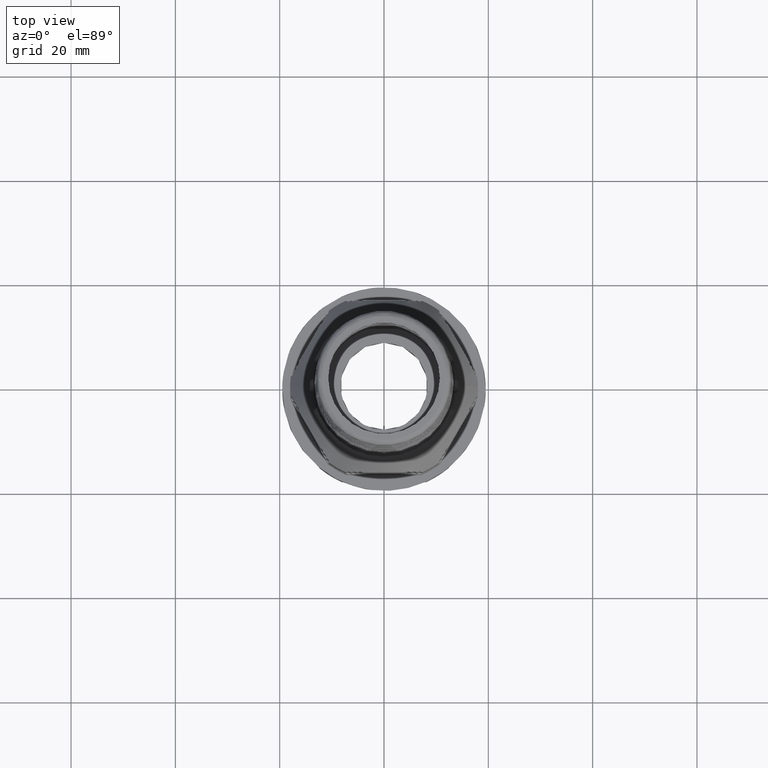
[diagram: clean part render]
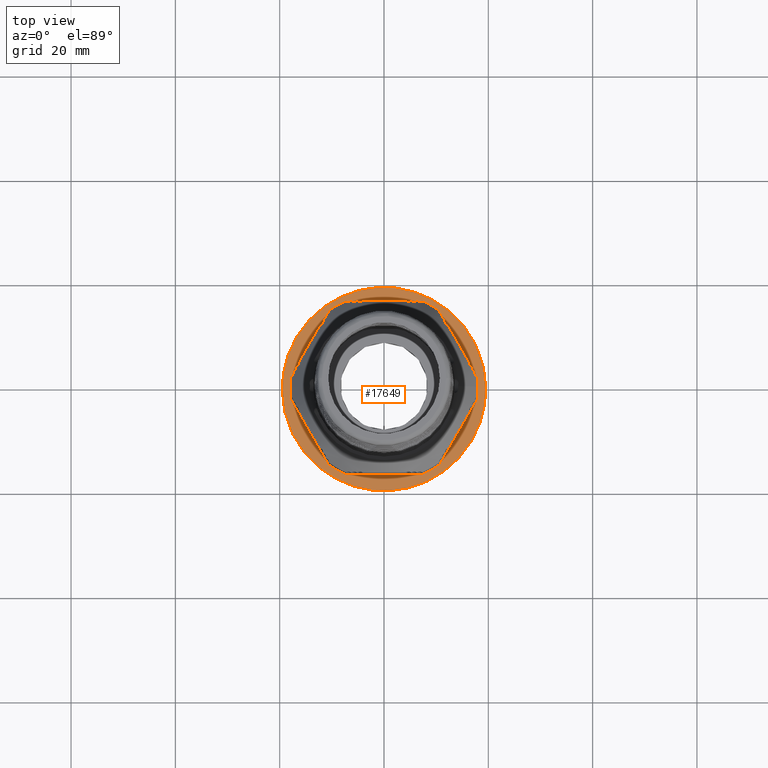
[diagram: same view with one face highlighted and labeled with its STEP entity id]
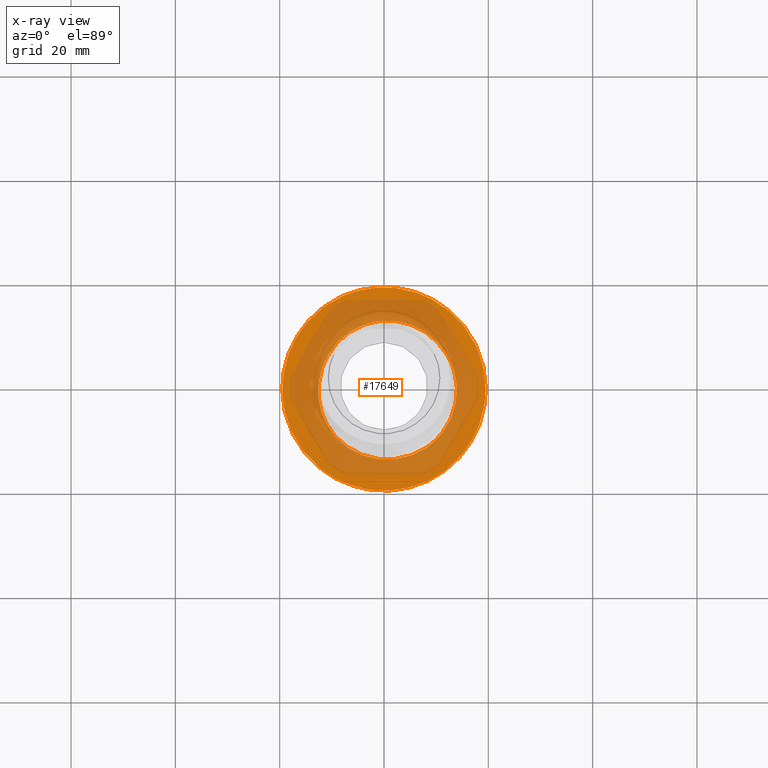
[diagram: x-ray of the same camera — body ghosted, the highlighted face saturated]
A machine part, top view. The second image highlights one B-rep face of the part: STEP entity #17649.
The next image is the same camera in x-ray: the body ghosted, the highlighted face saturated — about 60% of this face is hidden behind the body in this view.
In plain terms, the highlighted planar face has unit normal (0, 0, 1).
Its self-contained STEP definition (entity closure, byte-faithful):
#1501 = EDGE_LOOP ( 'NONE', ( #10972, #10967 ) ) ;
#1535 = EDGE_LOOP ( 'NONE', ( #11000, #11056, #10982, #11003 ) ) ;
#2568 = EDGE_CURVE ( 'NONE', #18529, #18474, #20102, .T. ) ;
#2581 = EDGE_CURVE ( 'NONE', #18489, #18523, #20106, .T. ) ;
#2585 = EDGE_CURVE ( 'NONE', #18590, #18618, #20108, .T. ) ;
#2616 = EDGE_CURVE ( 'NONE', #18523, #18590, #11880, .T. ) ;
#2658 = EDGE_CURVE ( 'NONE', #18618, #18489, #11894, .T. ) ;
#2683 = EDGE_CURVE ( 'NONE', #18474, #18529, #11847, .T. ) ;
#7761 = CARTESIAN_POINT ( 'NONE',  ( -10.63528446055113400, 6.568159897806968800, 8.832912421834274500 ) ) ;
#7766 = CARTESIAN_POINT ( 'NONE',  ( -10.32152492956580200, 7.135968187481874600, 8.832912421834269200 ) ) ;
#7774 = CARTESIAN_POINT ( 'NONE',  ( -7.788545115851558600, 10.06542794724939100, 8.832912421834270900 ) ) ;
#7775 = CARTESIAN_POINT ( 'NONE',  ( 2.127486798893839700, 13.03057928978716400, 8.832912421834272700 ) ) ;
#7776 = CARTESIAN_POINT ( 'NONE',  ( 2.286121411070273400, 13.01104878672296300, 8.832912421834272700 ) ) ;
#7778 = CARTESIAN_POINT ( 'NONE',  ( -1.092521394825930500, 13.01748165855391900, 8.832912421834270900 ) ) ;
#7779 = CARTESIAN_POINT ( 'NONE',  ( 8.506789120695653800, 10.51414064224610300, 8.832912421834272700 ) ) ;
#7780 = CARTESIAN_POINT ( 'NONE',  ( 8.887283262886200000, 10.21420917990582700, 8.832912421834270900 ) ) ;
#7781 = CARTESIAN_POINT ( 'NONE',  ( 0.8449559554909865700, 13.12125333294385100, 8.832912421834270900 ) ) ;
#7782 = CARTESIAN_POINT ( 'NONE',  ( 11.15275278135372300, 7.922122602979476000, 8.832912421834272700 ) ) ;
#7783 = CARTESIAN_POINT ( 'NONE',  ( -3.606363129913691800, 12.45802658282901200, 8.832912421834274500 ) ) ;
#7787 = CARTESIAN_POINT ( 'NONE',  ( 10.53102502614029800, 8.665440864402782500, 8.832912421834272700 ) ) ;
#7788 = CARTESIAN_POINT ( 'NONE',  ( 0.3618041826685159900, 13.11926343725905600, 8.832912421834272700 ) ) ;
#7789 = CARTESIAN_POINT ( 'NONE',  ( -8.493852660665682600, 9.396114858588429500, 8.832912421834274500 ) ) ;
#7790 = CARTESIAN_POINT ( 'NONE',  ( -2.047892586978101700, 12.85438541354413800, 8.832912421834274500 ) ) ;
#7791 = CARTESIAN_POINT ( 'NONE',  ( 1.327039749381867300, 13.10579224105601200, 8.832912421834274500 ) ) ;
#7792 = CARTESIAN_POINT ( 'NONE',  ( 3.733291012456450000, 12.80611546802535400, 8.832912421834270900 ) ) ;
#7793 = CARTESIAN_POINT ( 'NONE',  ( 7.585448956188500300, 11.16213656978995600, 8.832912421834269200 ) ) ;
#7794 = CARTESIAN_POINT ( 'NONE',  ( 9.624808213997484400, 9.584638984554517900, 8.832912421834269200 ) ) ;
#7795 = CARTESIAN_POINT ( 'NONE',  ( -5.670349479566499300, 11.53024714431163000, 8.832912421834270900 ) ) ;
#7796 = CARTESIAN_POINT ( 'NONE',  ( -8.667590982480613000, 9.222976184102126500, 8.832912421834272700 ) ) ;
#7797 = CARTESIAN_POINT ( 'NONE',  ( -0.6124652094753833000, 13.07334182347523700, 8.832912421834272700 ) ) ;
#7799 = CARTESIAN_POINT ( 'NONE',  ( 1.807521574875368100, 13.06415466780922900, 8.832912421834270900 ) ) ;
#7800 = CARTESIAN_POINT ( 'NONE',  ( -1.730515671665994400, 12.91568021337145400, 8.832912421834272700 ) ) ;
#7801 = CARTESIAN_POINT ( 'NONE',  ( 11.53704567049074800, 7.403831937229215400, 8.832912421834269200 ) ) ;
#7802 = CARTESIAN_POINT ( 'NONE',  ( 11.71927352932911000, 7.139212513552134700, 8.832912421834272700 ) ) ;
#7803 = CARTESIAN_POINT ( 'NONE',  ( 10.95154865248363600, 8.174444388414189100, 8.832912421834272700 ) ) ;
#7804 = CARTESIAN_POINT ( 'NONE',  ( -4.503498972059803800, 12.10017154158212300, 8.832912421834270900 ) ) ;
#7805 = CARTESIAN_POINT ( 'NONE',  ( 0.1968502551636878700, 13.11559056148671400, 8.832912421834269200 ) ) ;
#7806 = CARTESIAN_POINT ( 'NONE',  ( -6.226088779591186100, 11.20472692690667100, 8.832912421834270900 ) ) ;
#7807 = CARTESIAN_POINT ( 'NONE',  ( 9.137753595832672100, 10.00931733346467700, 8.832912421834272700 ) ) ;
#7808 = CARTESIAN_POINT ( 'NONE',  ( 9.262748822013719500, 9.903209277275857800, 8.832912421834270900 ) ) ;
#7809 = CARTESIAN_POINT ( 'NONE',  ( 10.31126615853526100, 8.904666989775073200, 8.832912421834270900 ) ) ;
#7810 = CARTESIAN_POINT ( 'NONE',  ( -7.290418477426449300, 10.46855409489786500, 8.832912421834274500 ) ) ;
#7811 = CARTESIAN_POINT ( 'NONE',  ( -2.521208214756748100, 12.75374468171491500, 8.832912421834270900 ) ) ;
#7812 = CARTESIAN_POINT ( 'NONE',  ( 12.59373341629875400, 5.768503091580079500, 8.832912421834270900 ) ) ;
#7813 = CARTESIAN_POINT ( 'NONE',  ( 13.49608267571282600, 3.347259511796654200, 8.832912421834270900 ) ) ;
#7817 = CARTESIAN_POINT ( 'NONE',  ( 9.858648974100711700, 9.363692507539601800, 8.832912421834272700 ) ) ;
#7818 = CARTESIAN_POINT ( 'NONE',  ( 4.967279109086494100, 12.44328383133036200, 8.832912421834270900 ) ) ;
#7820 = CARTESIAN_POINT ( 'NONE',  ( 13.12770580596202100, 4.595899385793029700, 8.832912421834270900 ) ) ;
#7822 = CARTESIAN_POINT ( 'NONE',  ( -8.376737951922496700, 9.510625941943846600, 8.832912421834269200 ) ) ;
#7824 = CARTESIAN_POINT ( 'NONE',  ( 6.738265101932306300, 11.62868596268447500, 8.832912421834270900 ) ) ;
#7825 = CARTESIAN_POINT ( 'NONE',  ( -9.059444210949882500, 8.809381597461943200, 8.832912421834267400 ) ) ;
#7826 = CARTESIAN_POINT ( 'NONE',  ( -8.316332550132957000, 9.568557104420694500, 8.832912421834272700 ) ) ;
#7827 = CARTESIAN_POINT ( 'NONE',  ( -1.569322819333594900, 12.94367389238881700, 8.832912421834270900 ) ) ;
#7829 = CARTESIAN_POINT ( 'NONE',  ( -0.1275268828605173900, 13.10228058653087800, 8.832912421834272700 ) ) ;
#7832 = CARTESIAN_POINT ( 'NONE',  ( -9.789005911492846900, 7.943775039492941800, 8.832912421834269200 ) ) ;
#8198 = CARTESIAN_POINT ( 'NONE',  ( 8.220085743327294000, -11.21510518012796700, 8.832912421834402400 ) ) ;
#8227 = CARTESIAN_POINT ( 'NONE',  ( 7.677575320285786400, -11.57795048156349600, 8.832912421834269200 ) ) ;
#8232 = CARTESIAN_POINT ( 'NONE',  ( 2.214854888103020800, -13.44221849022619300, 8.832912421834274500 ) ) ;
#8233 = CARTESIAN_POINT ( 'NONE',  ( -6.987305788843944900, -11.20287363727865100, 8.832912421834270900 ) ) ;
#8236 = CARTESIAN_POINT ( 'NONE',  ( 3.170307517332861200, -13.31661275345429700, 8.832912421834274500 ) ) ;
#8237 = CARTESIAN_POINT ( 'NONE',  ( -8.253345261836456000, -10.19612918445559100, 8.832912421834270900 ) ) ;
#8238 = CARTESIAN_POINT ( 'NONE',  ( -6.161390027909967600, -11.71468299547337500, 8.832912421834272700 ) ) ;
#8239 = CARTESIAN_POINT ( 'NONE',  ( -10.72836834649347700, -7.243672712744414700, 8.832912421834269200 ) ) ;
#8240 = CARTESIAN_POINT ( 'NONE',  ( -11.34524375873460900, -6.105786110893305400, 8.832912421834270900 ) ) ;
#8241 = CARTESIAN_POINT ( 'NONE',  ( -11.72880534121372300, -5.220014736956866100, 8.832912421834270900 ) ) ;
#8242 = CARTESIAN_POINT ( 'NONE',  ( -11.60853703420215400, -5.518067563731420000, 8.832912421834269200 ) ) ;
#8243 = CARTESIAN_POINT ( 'NONE',  ( -12.49675452122086500, 1.128324711970163400, 8.832912421834270900 ) ) ;
#8244 = CARTESIAN_POINT ( 'NONE',  ( 0.2752443603776631400, -13.54799320162172700, 8.832912421834272700 ) ) ;
#8245 = CARTESIAN_POINT ( 'NONE',  ( 5.035545198728547300, -12.79671544937548000, 8.832912421834270900 ) ) ;
#8246 = CARTESIAN_POINT ( 'NONE',  ( 1.253775328540522200, -13.52299255721314400, 8.832912421834272700 ) ) ;
#8247 = CARTESIAN_POINT ( 'NONE',  ( -7.511353332126190300, -10.82234165333224100, 8.832912421834272700 ) ) ;
#8248 = CARTESIAN_POINT ( 'NONE',  ( -8.492067486093908700, -9.979338207093539000, 8.832912421834272700 ) ) ;
#8249 = CARTESIAN_POINT ( 'NONE',  ( -9.814055114116529300, -8.572127212902282500, 8.832912421834272700 ) ) ;
#8250 = CARTESIAN_POINT ( 'NONE',  ( -12.21691943556752600, -3.685810379296513300, 8.832912421834269200 ) ) ;
#8254 = CARTESIAN_POINT ( 'NONE',  ( -3.524463025326630500, -12.90923471156005000, 8.832912421834272700 ) ) ;
#8255 = CARTESIAN_POINT ( 'NONE',  ( -12.41367346086022200, -2.734923397327322400, 8.832912421834272700 ) ) ;
#8256 = CARTESIAN_POINT ( 'NONE',  ( -12.54375720954549000, -1.773313495230516700, 8.832912421834270900 ) ) ;
#8257 = CARTESIAN_POINT ( 'NONE',  ( 1.574080837194460800, -13.50356516219620000, 8.832912421834269200 ) ) ;
#8258 = CARTESIAN_POINT ( 'NONE',  ( 6.834003668531367200, -12.06001634049854400, 8.832912421834274500 ) ) ;
#8259 = CARTESIAN_POINT ( 'NONE',  ( -5.879493008220936900, -11.87563601049118100, 8.832912421834270900 ) ) ;
#8260 = CARTESIAN_POINT ( 'NONE',  ( -8.952295096650226800, -9.529649276896435600, 8.832912421834270900 ) ) ;
#8261 = CARTESIAN_POINT ( 'NONE',  ( -0.6921131705442515900, -13.50385537775190400, 8.832912421834270900 ) ) ;
#8262 = CARTESIAN_POINT ( 'NONE',  ( -11.20110317053046200, -6.397647698057504300, 8.832912421834269200 ) ) ;
#8264 = CARTESIAN_POINT ( 'NONE',  ( -12.32886363081301400, -3.213146698458058100, 8.832912421834272700 ) ) ;
#8265 = CARTESIAN_POINT ( 'NONE',  ( -12.48659448721401900, -2.252795522439926800, 8.832912421834270900 ) ) ;
#8266 = CARTESIAN_POINT ( 'NONE',  ( -12.58276521883704800, -1.292898941875718900, 8.832912421834270900 ) ) ;
#8267 = CARTESIAN_POINT ( 'NONE',  ( -9.173018618344704200, -9.297636218783601700, 8.832912421834274500 ) ) ;
#8268 = CARTESIAN_POINT ( 'NONE',  ( -12.56822447032707600, 0.4838707407929995200, 8.832912421834269200 ) ) ;
#8269 = CARTESIAN_POINT ( 'NONE',  ( -12.37465206567911500, 1.765782051495467400, 8.832912421834269200 ) ) ;
#8270 = CARTESIAN_POINT ( 'NONE',  ( -12.59634021404322900, -0.4895658622057779700, 8.832912421834269200 ) ) ;
#8271 = CARTESIAN_POINT ( 'NONE',  ( -5.308266191602853300, -12.17467816306330000, 8.832912421834272700 ) ) ;
#8274 = CARTESIAN_POINT ( 'NONE',  ( -12.59427127366542900, -0.3304425127432857900, 8.832912421834272700 ) ) ;
#8275 = CARTESIAN_POINT ( 'NONE',  ( 5.945722990988478800, -12.44877905960592700, 8.832912421834272700 ) ) ;
#8276 = CARTESIAN_POINT ( 'NONE',  ( -2.585393402619570000, -13.15919124347987400, 8.832912421834272700 ) ) ;
#8277 = CARTESIAN_POINT ( 'NONE',  ( -2.740306788132051500, -13.12046749305558200, 8.832912421834272700 ) ) ;
#8278 = CARTESIAN_POINT ( 'NONE',  ( -10.20194808142910100, -8.060101112494237400, 8.832912421834272700 ) ) ;
#8281 = CARTESIAN_POINT ( 'NONE',  ( -4.437401423391335700, -12.59072741007755900, 8.832912421834270900 ) ) ;
#8282 = CARTESIAN_POINT ( 'NONE',  ( -12.04354107284173700, -4.311086735710205200, 8.832912421834272700 ) ) ;
#8283 = CARTESIAN_POINT ( 'NONE',  ( -12.46418348862540900, -2.414872392064103300, 8.832912421834269200 ) ) ;
#8284 = CARTESIAN_POINT ( 'NONE',  ( -12.59454115856873800, -0.8110855993028321900, 8.832912421834272700 ) ) ;
#8287 = CARTESIAN_POINT ( 'NONE',  ( -10.89310467997611900, -6.965610589840393300, 8.832912421834270900 ) ) ;
#8288 = CARTESIAN_POINT ( 'NONE',  ( -11.94658529379247700, -4.615521977020532200, 8.832912421834269200 ) ) ;
#8289 = CARTESIAN_POINT ( 'NONE',  ( -1.801143441448160200, -13.33136893041659300, 8.832912421834272700 ) ) ;
#8290 = CARTESIAN_POINT ( 'NONE',  ( 5.343600533562450600, -12.68722017460470000, 8.832912421834276300 ) ) ;
#8291 = CARTESIAN_POINT ( 'NONE',  ( 4.108634805163704900, -13.09024983023176600, 8.832912421834276300 ) ) ;
#8292 = CARTESIAN_POINT ( 'NONE',  ( -2.272252090013053800, -13.23151924166847800, 8.832912421834270900 ) ) ;
#8341 = CARTESIAN_POINT ( 'NONE',  ( -18.18850528484338400, -7.030639790636116400, 8.832912421834269200 ) ) ;
#8342 = CARTESIAN_POINT ( 'NONE',  ( -18.32815950568127100, -6.661362341645049600, 8.832912421834270900 ) ) ;
#8343 = CARTESIAN_POINT ( 'NONE',  ( -16.92673472056512200, -9.691796214194422300, 8.832912421834274500 ) ) ;
#8345 = CARTESIAN_POINT ( 'NONE',  ( -16.63053719962815400, -10.18452010551310300, 8.832912421834269200 ) ) ;
#8346 = CARTESIAN_POINT ( 'NONE',  ( -16.41111887864578000, -10.53242593149195700, 8.832912421834272700 ) ) ;
#8348 = CARTESIAN_POINT ( 'NONE',  ( -19.05942834541067700, -4.169961569677856700, 8.832912421834270900 ) ) ;
#8349 = CARTESIAN_POINT ( 'NONE',  ( -16.36743899021647100, -10.60018521425099400, 8.832912421834272700 ) ) ;
#8350 = CARTESIAN_POINT ( 'NONE',  ( -15.58498812551968300, -11.79706981915879100, 8.832912421834270900 ) ) ;
#8352 = CARTESIAN_POINT ( 'NONE',  ( -19.34057585810890200, -2.520011729769063600, 8.832912421834272700 ) ) ;
#8353 = CARTESIAN_POINT ( 'NONE',  ( -19.26344614252063900, -3.034699548263470900, 8.832912421834272700 ) ) ;
#8354 = CARTESIAN_POINT ( 'NONE',  ( -16.49944023032134800, -10.39354876420705400, 8.832912421834272700 ) ) ;
#8358 = CARTESIAN_POINT ( 'NONE',  ( -19.22043313117306000, -3.291628015740278600, 8.832912421834270900 ) ) ;
#8359 = CARTESIAN_POINT ( 'NONE',  ( -19.18164383029274200, -3.509424394059259500, 8.832912421834272700 ) ) ;
#8360 = CARTESIAN_POINT ( 'NONE',  ( -19.50000000000000400, 2.388061258337339700E-015, 8.832912421834270900 ) ) ;
#8361 = CARTESIAN_POINT ( 'NONE',  ( -18.84271073970055700, -5.089919019711092400, 8.832912421834269200 ) ) ;
#8370 = CARTESIAN_POINT ( 'NONE',  ( -19.20104580769123000, -3.401651192850970100, 8.832912421834272700 ) ) ;
#8373 = CARTESIAN_POINT ( 'NONE',  ( -19.18790910853412900, -3.474980194649982300, 8.832912421834272700 ) ) ;
#8374 = CARTESIAN_POINT ( 'NONE',  ( -18.51256186216641500, -6.141212873916987100, 8.832912421834270900 ) ) ;
#8375 = CARTESIAN_POINT ( 'NONE',  ( -18.23112634800917700, -6.920062710665354700, 8.832912421834269200 ) ) ;
#8378 = CARTESIAN_POINT ( 'NONE',  ( -18.15986114847429900, -7.104292398005022800, 8.832912421834267400 ) ) ;
#8379 = CARTESIAN_POINT ( 'NONE',  ( -18.14602691760370600, -7.139563005802347800, 8.832912421834269200 ) ) ;
#8381 = CARTESIAN_POINT ( 'NONE',  ( -17.88839112053648300, -7.790388126923280900, 8.832912421834272700 ) ) ;
#8382 = CARTESIAN_POINT ( 'NONE',  ( -17.48034813265658700, -8.686387014092574100, 8.832912421834274500 ) ) ;
#8384 = CARTESIAN_POINT ( 'NONE',  ( -19.49996755733860000, -0.5964443533499934600, 8.832912421834270900 ) ) ;
#8394 = CARTESIAN_POINT ( 'NONE',  ( -19.45925006085794400, -1.487312558617094100, 8.832912421834270900 ) ) ;
#8398 = CARTESIAN_POINT ( 'NONE',  ( 3.291520154797873000, -19.22045308807922800, 8.832912421834270900 ) ) ;
#8399 = CARTESIAN_POINT ( 'NONE',  ( -1.192362756199897700, -19.49996757164703000, 8.832912421834274500 ) ) ;
#8400 = CARTESIAN_POINT ( 'NONE',  ( -7.214586675483380100, -18.11632577817822200, 8.832912421834269200 ) ) ;
#8401 = CARTESIAN_POINT ( 'NONE',  ( 4.169961569685449700, -19.05942834540512400, 8.832912421834270900 ) ) ;
#8402 = CARTESIAN_POINT ( 'NONE',  ( -13.31277013237256300, -14.26442061300694600, 8.832912421834272700 ) ) ;
#8403 = CARTESIAN_POINT ( 'NONE',  ( -11.15887250038119300, -15.99315546079712500, 8.832912421834274500 ) ) ;
#8404 = CARTESIAN_POINT ( 'NONE',  ( 6.661362341650867200, -18.32815950567700700, 8.832912421834270900 ) ) ;
#8405 = CARTESIAN_POINT ( 'NONE',  ( 9.691796214213685100, -16.92673472056096500, 8.832912421834270900 ) ) ;
#8406 = CARTESIAN_POINT ( 'NONE',  ( 15.65315157624401900, -11.63756191358780800, 8.832912421834270900 ) ) ;
#8407 = CARTESIAN_POINT ( 'NONE',  ( -10.81112723256199000, -16.22888334612209600, 8.832912421834272700 ) ) ;
#8408 = CARTESIAN_POINT ( 'NONE',  ( -10.95063646381082200, -16.13509562956021200, 8.832912421834269200 ) ) ;
#8409 = CARTESIAN_POINT ( 'NONE',  ( -3.819945231567078500, -19.12248016738217200, 8.832912421834270900 ) ) ;
#8410 = CARTESIAN_POINT ( 'NONE',  ( 3.474947836367261500, -19.18791509560597700, 8.832912421834272700 ) ) ;
#8411 = CARTESIAN_POINT ( 'NONE',  ( 6.141212873926961400, -18.51256186215911700, 8.832912421834269200 ) ) ;
#8412 = CARTESIAN_POINT ( 'NONE',  ( 2.519666574753368000, -19.34063972020862800, 8.832912421834270900 ) ) ;
#8413 = CARTESIAN_POINT ( 'NONE',  ( 11.79706981920305400, -15.58498812547758800, 8.832912421834272700 ) ) ;
#8414 = CARTESIAN_POINT ( 'NONE',  ( 15.99315546079868600, -11.15887250037880200, 8.832912421834270900 ) ) ;
#8415 = CARTESIAN_POINT ( 'NONE',  ( -9.269057523430376500, -17.17848948409491800, 8.832912421834267400 ) ) ;
#8416 = CARTESIAN_POINT ( 'NONE',  ( 7.139563005801436500, -18.14602691760389400, 8.832912421834269200 ) ) ;
#8417 = CARTESIAN_POINT ( 'NONE',  ( 14.26442061300899200, -13.31277013236943000, 8.832912421834269200 ) ) ;
#8418 = CARTESIAN_POINT ( 'NONE',  ( 16.13509562956116000, -10.95063646380938100, 8.832912421834270900 ) ) ;
#8419 = CARTESIAN_POINT ( 'NONE',  ( 16.68192366310024300, -10.11919604914533700, 8.832912421834270900 ) ) ;
#8420 = CARTESIAN_POINT ( 'NONE',  ( 17.17848948409686800, -9.269057523427408200, 8.832912421834270900 ) ) ;
#8421 = CARTESIAN_POINT ( 'NONE',  ( 10.53242593149551500, -16.41111887864501600, 8.832912421834272700 ) ) ;
#8422 = CARTESIAN_POINT ( 'NONE',  ( -7.710732707603274800, -17.91211419865874900, 8.832912421834270900 ) ) ;
#8423 = CARTESIAN_POINT ( 'NONE',  ( 7.104292398005969600, -18.15986114847361000, 8.832912421834269200 ) ) ;
#8424 = CARTESIAN_POINT ( 'NONE',  ( 16.22888334612259300, -10.81112723256123300, 8.832912421834270900 ) ) ;
#8425 = CARTESIAN_POINT ( 'NONE',  ( 17.68046457687025400, -8.236896445812263300, 8.832912421834270900 ) ) ;
#8426 = CARTESIAN_POINT ( 'NONE',  ( 14.93790317736573300, -12.56616205152731200, 8.832912421834272700 ) ) ;
#8427 = CARTESIAN_POINT ( 'NONE',  ( -11.63756191359192000, -15.65315157624133700, 8.832912421834272700 ) ) ;
#8428 = CARTESIAN_POINT ( 'NONE',  ( -4.090676306494595200, -19.06728964218737200, 8.832912421834269200 ) ) ;
#8429 = CARTESIAN_POINT ( 'NONE',  ( -3.684229206127295000, -19.14886942680940200, 8.832912421834270900 ) ) ;
#8430 = CARTESIAN_POINT ( 'NONE',  ( -8.236896445814496200, -17.68046457686879000, 8.832912421834272700 ) ) ;
#8431 = CARTESIAN_POINT ( 'NONE',  ( 3.509424394058782600, -19.18164383029309100, 8.832912421834269200 ) ) ;
#8432 = CARTESIAN_POINT ( 'NONE',  ( 1.486852351929497400, -19.45933521032426600, 8.832912421834270900 ) ) ;
#8433 = CARTESIAN_POINT ( 'NONE',  ( 3.034498207837650300, -19.26348339541215200, 8.832912421834270900 ) ) ;
#8434 = CARTESIAN_POINT ( 'NONE',  ( 10.39354876421381800, -16.49944023031988400, 8.832912421834272700 ) ) ;
#8435 = CARTESIAN_POINT ( 'NONE',  ( 10.60018521424822800, -16.36743899021908900, 8.832912421834269200 ) ) ;
#8436 = CARTESIAN_POINT ( 'NONE',  ( -2.375828718504893600, -19.39145244715056600, 8.832912421834270900 ) ) ;
#8437 = CARTESIAN_POINT ( 'NONE',  ( -3.625990090658242500, -19.15992068017033400, 8.832912421834270900 ) ) ;
#8438 = CARTESIAN_POINT ( 'NONE',  ( -5.695435429402352600, -18.66861031348987900, 8.832912421834270900 ) ) ;
#8439 = CARTESIAN_POINT ( 'NONE',  ( 0.5961813780999371000, -19.50001621417649400, 8.832912421834270900 ) ) ;
#8440 = CARTESIAN_POINT ( 'NONE',  ( 3.401588017156132800, -19.20105749673627200, 8.832912421834270900 ) ) ;
#8441 = CARTESIAN_POINT ( 'NONE',  ( 10.18452010552433900, -16.63053719962573900, 8.832912421834270900 ) ) ;
#8442 = CARTESIAN_POINT ( 'NONE',  ( -7.254393522785966800, -18.10042652156721800, 8.832912421834267400 ) ) ;
#8443 = CARTESIAN_POINT ( 'NONE',  ( -14.74020643466793400, -12.83690547339915400, 8.832912421834274500 ) ) ;
#8444 = CARTESIAN_POINT ( 'NONE',  ( -4.629334552541433100, -18.94726056643655800, 8.832912421834272700 ) ) ;
#8445 = CARTESIAN_POINT ( 'NONE',  ( 5.089919019724384000, -18.84271073969083000, 8.832912421834270900 ) ) ;
#8446 = CARTESIAN_POINT ( 'NONE',  ( 12.83690547339506900, -14.74020643467418500, 8.832912421834270900 ) ) ;
#8447 = CARTESIAN_POINT ( 'NONE',  ( 16.27634856947163700, -10.73951445874340000, 8.832912421834270900 ) ) ;
#8448 = CARTESIAN_POINT ( 'NONE',  ( 17.91211419865960500, -7.710732707601969200, 8.832912421834270900 ) ) ;
#8449 = CARTESIAN_POINT ( 'NONE',  ( 18.02310452840493900, -7.445130038646144800, 8.832912421834272700 ) ) ;
#8450 = CARTESIAN_POINT ( 'NONE',  ( -10.11919604914703200, -16.68192366309914500, 8.832912421834270900 ) ) ;
#8451 = CARTESIAN_POINT ( 'NONE',  ( -7.445130038646847300, -18.02310452840449200, 8.832912421834274500 ) ) ;
#8452 = CARTESIAN_POINT ( 'NONE',  ( -6.590009412026983400, -18.36360935134412400, 8.832912421834270900 ) ) ;
#8453 = CARTESIAN_POINT ( 'NONE',  ( 7.790388126937964200, -17.88839112053332100, 8.832912421834272700 ) ) ;
#8454 = CARTESIAN_POINT ( 'NONE',  ( -3.587147323775251800, -19.16723075368856000, 8.832912421834272700 ) ) ;
#8455 = CARTESIAN_POINT ( 'NONE',  ( 7.030639790637954100, -18.18850528484203700, 8.832912421834270900 ) ) ;
#8456 = CARTESIAN_POINT ( 'NONE',  ( -12.56616205153279400, -14.93790317736215200, 8.832912421834272700 ) ) ;
#8457 = CARTESIAN_POINT ( 'NONE',  ( -10.73951445874319300, -16.27634856947177900, 8.832912421834270900 ) ) ;
#8458 = CARTESIAN_POINT ( 'NONE',  ( -7.330760151983199100, -18.06963585233496200, 8.832912421834269200 ) ) ;
#8459 = CARTESIAN_POINT ( 'NONE',  ( -3.566599065842017700, -19.17106409407589500, 8.832912421834269200 ) ) ;
#8460 = CARTESIAN_POINT ( 'NONE',  ( 8.686387014118260200, -17.48034813265105200, 8.832912421834270900 ) ) ;
#8461 = CARTESIAN_POINT ( 'NONE',  ( 6.920062710668480200, -18.23112634800689600, 8.832912421834270900 ) ) ;
#8465 = CARTESIAN_POINT ( 'NONE',  ( 18.06963585233523200, -7.330760151982789600, 8.832912421834269200 ) ) ;
#8476 = CARTESIAN_POINT ( 'NONE',  ( 19.39141999004595700, -2.376004086019986700, 8.832912421834272700 ) ) ;
#8480 = CARTESIAN_POINT ( 'NONE',  ( 18.66861031349036500, -5.695435429399272400, 8.832912421834272700 ) ) ;
#8481 = CARTESIAN_POINT ( 'NONE',  ( 18.10042652156736100, -7.254393522785756300, 8.832912421834272700 ) ) ;
#8482 = CARTESIAN_POINT ( 'NONE',  ( 19.15992068017036900, -3.625990090658021400, 8.832912421834272700 ) ) ;
#8484 = CARTESIAN_POINT ( 'NONE',  ( 19.49993509533822000, -1.193244245341063200, 8.832912421834269200 ) ) ;
#8493 = CARTESIAN_POINT ( 'NONE',  ( 19.17106460121815900, -3.566596325724591000, 8.832912421834269200 ) ) ;
#8495 = CARTESIAN_POINT ( 'NONE',  ( 19.12248016738228500, -3.819945231566349800, 8.832912421834270900 ) ) ;
#8496 = CARTESIAN_POINT ( 'NONE',  ( 19.14886942680945800, -3.684229206126915700, 8.832912421834272700 ) ) ;
#8506 = CARTESIAN_POINT ( 'NONE',  ( 19.16723075368857500, -3.587147323775139000, 8.832912421834270900 ) ) ;
#8507 = CARTESIAN_POINT ( 'NONE',  ( 18.11632577817820100, -7.214586675483488400, 8.832912421834269200 ) ) ;
#8512 = CARTESIAN_POINT ( 'NONE',  ( 18.36360935134439400, -6.590009412025217700, 8.832912421834270900 ) ) ;
#8513 = CARTESIAN_POINT ( 'NONE',  ( 18.94726056643693100, -4.629334552539118500, 8.832912421834272700 ) ) ;
#8515 = CARTESIAN_POINT ( 'NONE',  ( 19.06728964218759600, -4.090676306493235400, 8.832912421834270900 ) ) ;
#8520 = CARTESIAN_POINT ( 'NONE',  ( 19.50000000000000700, -9.552245033349358500E-016, 8.832912421834270900 ) ) ;
#8864 = CARTESIAN_POINT ( 'NONE',  ( 10.65988808313470000, -9.046276220075848000, 8.832912421834270900 ) ) ;
#8865 = CARTESIAN_POINT ( 'NONE',  ( 13.98009781264462200, -0.05214450245401638900, 8.832912421834270900 ) ) ;
#8866 = CARTESIAN_POINT ( 'NONE',  ( 9.086934491785919800, -10.56872152999421700, 8.832912421834270900 ) ) ;
#8868 = CARTESIAN_POINT ( 'NONE',  ( 13.54279558006212300, 3.188809312493850400, 8.832912421834270900 ) ) ;
#8869 = CARTESIAN_POINT ( 'NONE',  ( 13.58088368227054200, -3.462951701799866100, 8.832912421834274500 ) ) ;
#8873 = CARTESIAN_POINT ( 'NONE',  ( 8.772924344049899400, -10.82471428630365500, 8.832912421834272700 ) ) ;
#8874 = CARTESIAN_POINT ( 'NONE',  ( 13.78197977926607900, -2.452069792535493100, 8.832912421834270900 ) ) ;
#8875 = CARTESIAN_POINT ( 'NONE',  ( 9.071260570795470100, -10.58156780095579000, 8.832912421834270900 ) ) ;
#8876 = CARTESIAN_POINT ( 'NONE',  ( 9.169699441661569100, -10.50033276416271900, 8.832912421834272700 ) ) ;
#8878 = CARTESIAN_POINT ( 'NONE',  ( 13.70928930618232600, 2.491910437470506300, 8.832912421834270900 ) ) ;
#8879 = CARTESIAN_POINT ( 'NONE',  ( 12.64616243524071700, -6.042333832988826500, 8.832912421834270900 ) ) ;
#8880 = CARTESIAN_POINT ( 'NONE',  ( 13.81701966480984800, 1.914571234920831700, 8.832912421834270900 ) ) ;
#8882 = CARTESIAN_POINT ( 'NONE',  ( 9.120073937692970000, -10.54142502392985000, 8.832912421834270900 ) ) ;
#8883 = CARTESIAN_POINT ( 'NONE',  ( 9.284906630011185800, -10.40341832001206900, 8.832912421834270900 ) ) ;
#8884 = CARTESIAN_POINT ( 'NONE',  ( 13.39665768234745100, -4.123336100405551500, 8.832912421834270900 ) ) ;
#8885 = CARTESIAN_POINT ( 'NONE',  ( 13.91920393855206400, -1.428057756245930000, 8.832912421834270900 ) ) ;
#8886 = CARTESIAN_POINT ( 'NONE',  ( 13.73158351004735600, 2.381474233110181200, 8.832912421834270900 ) ) ;
#8887 = CARTESIAN_POINT ( 'NONE',  ( 11.61337651737368900, -7.827930454649091100, 8.832912421834269200 ) ) ;
#8888 = CARTESIAN_POINT ( 'NONE',  ( 13.87586762944979100, 1.484405479868559800, 8.832912421834272700 ) ) ;
#8889 = CARTESIAN_POINT ( 'NONE',  ( 10.98714279199942300, -8.649392848052141100, 8.832912421834272700 ) ) ;
#8890 = CARTESIAN_POINT ( 'NONE',  ( 13.77300826979481300, 2.168889606037850600, 8.832912421834270900 ) ) ;
#8891 = CARTESIAN_POINT ( 'NONE',  ( 9.512978389735279100, -10.20545941293472200, 8.832912421834270900 ) ) ;
#8892 = CARTESIAN_POINT ( 'NONE',  ( 13.94746239316110700, -1.085483217206408800, 8.832912421834270900 ) ) ;
#8895 = CARTESIAN_POINT ( 'NONE',  ( 9.704452554684248600, -10.02870031753803400, 8.832912421834270900 ) ) ;
#8896 = CARTESIAN_POINT ( 'NONE',  ( 13.95792465599846600, 0.6320252157745746000, 8.832912421834270900 ) ) ;
#8897 = CARTESIAN_POINT ( 'NONE',  ( 13.88633393202432700, 1.397806079875763000, 8.832912421834267400 ) ) ;
#8898 = CARTESIAN_POINT ( 'NONE',  ( 13.97791576718443300, -0.3976697152853440600, 8.832912421834269200 ) ) ;
#8900 = CARTESIAN_POINT ( 'NONE',  ( 9.952950819163325100, -9.788690614276353200, 8.832912421834272700 ) ) ;
#8902 = CARTESIAN_POINT ( 'NONE',  ( 10.07381726059956000, -9.667936010833303200, 8.832912421834269200 ) ) ;
#8903 = CARTESIAN_POINT ( 'NONE',  ( 13.49608267571282600, 3.347259511796654200, 8.832912421834270900 ) ) ;
#8904 = CARTESIAN_POINT ( 'NONE',  ( 13.60835792509003300, 2.943685961427985600, 8.832912421834270900 ) ) ;
#8905 = CARTESIAN_POINT ( 'NONE',  ( 12.92780212968402900, -5.417251050808677500, 8.832912421834269200 ) ) ;
#8906 = CARTESIAN_POINT ( 'NONE',  ( 13.83662349413921400, -2.110542410482954400, 8.832912421834269200 ) ) ;
#8907 = CARTESIAN_POINT ( 'NONE',  ( 13.67696005750456400, 2.644674627322258300, 8.832912421834270900 ) ) ;
#8910 = CARTESIAN_POINT ( 'NONE',  ( 8.495049131496664100, -11.03112583455026300, 8.832912421834272700 ) ) ;
#8911 = CARTESIAN_POINT ( 'NONE',  ( 8.220085743327294000, -11.21510518012796700, 8.832912421834402400 ) ) ;
#8912 = CARTESIAN_POINT ( 'NONE',  ( 13.89148529718408500, 1.353254775365579300, 8.832912421834270900 ) ) ;
#8913 = CARTESIAN_POINT ( 'NONE',  ( 10.25334969198172500, -9.485073127583993000, 8.832912421834270900 ) ) ;
#8914 = CARTESIAN_POINT ( 'NONE',  ( 13.85953755122340100, 1.614030588414685500, 8.832912421834270900 ) ) ;
#8915 = CARTESIAN_POINT ( 'NONE',  ( 13.93364411463605300, 0.9723559930344487500, 8.832912421834270900 ) ) ;
#8916 = CARTESIAN_POINT ( 'NONE',  ( 9.893249443090200000, -9.847221200683005500, 8.832912421834269200 ) ) ;
#8917 = CARTESIAN_POINT ( 'NONE',  ( 11.98654986728703500, -7.252252293200041500, 8.832912421834272700 ) ) ;
#8918 = CARTESIAN_POINT ( 'NONE',  ( 13.72272216614504700, 2.425741815505708700, 8.832912421834272700 ) ) ;
#8919 = CARTESIAN_POINT ( 'NONE',  ( 13.73621597734611300, 2.357984435717202000, 8.832912421834269200 ) ) ;
#9473 = AXIS2_PLACEMENT_3D ( 'NONE', #22206, #22221, #22336 ) ;
#10126 = CARTESIAN_POINT ( 'NONE',  ( 17.48034813267269900, 8.686387014061274700, 8.832912421834270900 ) ) ;
#10127 = CARTESIAN_POINT ( 'NONE',  ( 11.15887250037311600, 15.99315546080437900, 8.832912421834272700 ) ) ;
#10129 = CARTESIAN_POINT ( 'NONE',  ( 16.36743899021580300, 10.60018521425152500, 8.832912421834269200 ) ) ;
#10130 = CARTESIAN_POINT ( 'NONE',  ( 19.45925006085794000, 1.487312558636539000, 8.832912421834272700 ) ) ;
#10131 = CARTESIAN_POINT ( 'NONE',  ( 10.95063646380596000, 16.13509562956457800, 8.832912421834270900 ) ) ;
#10132 = CARTESIAN_POINT ( 'NONE',  ( 9.269057523397354000, 17.17848948411211300, 8.832912421834269200 ) ) ;
#10133 = CARTESIAN_POINT ( 'NONE',  ( 7.710732707588819700, 17.91211419866626600, 8.832912421834270900 ) ) ;
#10134 = CARTESIAN_POINT ( 'NONE',  ( 7.445130038639095300, 18.02310452840852100, 8.832912421834272700 ) ) ;
#10136 = CARTESIAN_POINT ( 'NONE',  ( 7.330760151978658700, 18.06963585233732400, 8.832912421834272700 ) ) ;
#10139 = CARTESIAN_POINT ( 'NONE',  ( 15.58498812553020400, 11.79706981915044000, 8.832912421834270900 ) ) ;
#10141 = CARTESIAN_POINT ( 'NONE',  ( 19.49996755733860400, 0.5964443533611062400, 8.832912421834270900 ) ) ;
#10143 = CARTESIAN_POINT ( 'NONE',  ( 8.236896445789723100, 17.68046457688167900, 8.832912421834270900 ) ) ;
#10145 = CARTESIAN_POINT ( 'NONE',  ( 7.214586675484008000, 18.11632577817813000, 8.832912421834274500 ) ) ;
#10146 = CARTESIAN_POINT ( 'NONE',  ( 5.695435429384571300, 18.66861031349298400, 8.832912421834270900 ) ) ;
#10148 = CARTESIAN_POINT ( 'NONE',  ( 14.74020643468903900, 12.83690547338020400, 8.832912421834272700 ) ) ;
#10150 = CARTESIAN_POINT ( 'NONE',  ( 19.22043313117305600, 3.291628015744831400, 8.832912421834269200 ) ) ;
#10152 = CARTESIAN_POINT ( 'NONE',  ( 3.819945231562902800, 19.12248016738289300, 8.832912421834270900 ) ) ;
#10154 = CARTESIAN_POINT ( 'NONE',  ( 13.31277013236200100, 14.26442061301642600, 8.832912421834269200 ) ) ;
#10155 = CARTESIAN_POINT ( 'NONE',  ( 3.684229206125134500, 19.14886942680978900, 8.832912421834272700 ) ) ;
#10157 = CARTESIAN_POINT ( 'NONE',  ( 16.92673472057720500, 9.691796214170953000, 8.832912421834270900 ) ) ;
#10159 = CARTESIAN_POINT ( 'NONE',  ( 16.63053719963520600, 10.18452010549941500, 8.832912421834274500 ) ) ;
#10163 = CARTESIAN_POINT ( 'NONE',  ( 19.34057585810889500, 2.520011729783646600, 8.832912421834270900 ) ) ;
#10167 = CARTESIAN_POINT ( 'NONE',  ( 18.15986114847402200, 7.104292398005104500, 8.832912421834272700 ) ) ;
#10169 = CARTESIAN_POINT ( 'NONE',  ( 19.18790910853412200, 3.474980194651347400, 8.832912421834272700 ) ) ;
#10170 = CARTESIAN_POINT ( 'NONE',  ( 19.18164383029288400, 3.509424394059216900, 8.832912421834272700 ) ) ;
#10172 = CARTESIAN_POINT ( 'NONE',  ( 16.49944023032558200, 10.39354876419881000, 8.832912421834269200 ) ) ;
#10174 = CARTESIAN_POINT ( 'NONE',  ( 10.81112723255943900, 16.22888334612438400, 8.832912421834270900 ) ) ;
#10176 = CARTESIAN_POINT ( 'NONE',  ( 10.73951445874555200, 16.27634856947055700, 8.832912421834270900 ) ) ;
#10178 = CARTESIAN_POINT ( 'NONE',  ( 7.254393522783638000, 18.10042652156844100, 8.832912421834270900 ) ) ;
#10180 = CARTESIAN_POINT ( 'NONE',  ( 6.590009412016814700, 18.36360935134589000, 8.832912421834272700 ) ) ;
#10182 = CARTESIAN_POINT ( 'NONE',  ( 3.566599065841663800, 19.17106409407595900, 8.832912421834272700 ) ) ;
#10185 = CARTESIAN_POINT ( 'NONE',  ( 18.18850528484282900, 7.030639790636279900, 8.832912421834270900 ) ) ;
#10187 = CARTESIAN_POINT ( 'NONE',  ( 17.88839112054569800, 7.790388126905398300, 8.832912421834270900 ) ) ;
#10192 = CARTESIAN_POINT ( 'NONE',  ( 12.56616205151431700, 14.93790317737873100, 8.832912421834272700 ) ) ;
#10194 = CARTESIAN_POINT ( 'NONE',  ( 18.32815950567951200, 6.661362341645548700, 8.832912421834270900 ) ) ;
#10195 = CARTESIAN_POINT ( 'NONE',  ( 11.63756191357806300, 15.65315157625377100, 8.832912421834272700 ) ) ;
#10199 = CARTESIAN_POINT ( 'NONE',  ( 18.51256186216339500, 6.141212873917846000, 8.832912421834274500 ) ) ;
#10203 = CARTESIAN_POINT ( 'NONE',  ( 19.26344614252063500, 3.034699548271976500, 8.832912421834272700 ) ) ;
#10205 = CARTESIAN_POINT ( 'NONE',  ( 19.50000000000000700, -9.552245033349358500E-016, 8.832912421834270900 ) ) ;
#10206 = CARTESIAN_POINT ( 'NONE',  ( 16.41111887864800800, 10.53242593148763000, 8.832912421834267400 ) ) ;
#10208 = CARTESIAN_POINT ( 'NONE',  ( 18.14602691760313400, 7.139563005803465100, 8.832912421834270900 ) ) ;
#10210 = CARTESIAN_POINT ( 'NONE',  ( 10.11919604912816900, 16.68192366310896400, 8.832912421834272700 ) ) ;
#10212 = CARTESIAN_POINT ( 'NONE',  ( 4.629334552528098000, 18.94726056643888200, 8.832912421834270900 ) ) ;
#10216 = CARTESIAN_POINT ( 'NONE',  ( 4.090676306486811200, 19.06728964218874000, 8.832912421834270900 ) ) ;
#10218 = CARTESIAN_POINT ( 'NONE',  ( 18.84271073969652500, 5.089919019712236400, 8.832912421834272700 ) ) ;
#10219 = CARTESIAN_POINT ( 'NONE',  ( 3.625990090656989700, 19.15992068017054400, 8.832912421834270900 ) ) ;
#10221 = CARTESIAN_POINT ( 'NONE',  ( 18.23112634800823200, 6.920062710665627400, 8.832912421834272700 ) ) ;
#10223 = CARTESIAN_POINT ( 'NONE',  ( 3.587147323774615000, 19.16723075368866300, 8.832912421834272700 ) ) ;
#10225 = CARTESIAN_POINT ( 'NONE',  ( 2.375828718527105200, 19.39145244714666200, 8.832912421834270900 ) ) ;
#10227 = CARTESIAN_POINT ( 'NONE',  ( 19.20104580769123400, 3.401651192853636800, 8.832912421834272700 ) ) ;
#10229 = CARTESIAN_POINT ( 'NONE',  ( 19.05942834540837400, 4.169961569678507700, 8.832912421834272700 ) ) ;
#10232 = CARTESIAN_POINT ( 'NONE',  ( -7.139563005801422300, 18.14602691760395800, 8.832912421834270900 ) ) ;
#10234 = CARTESIAN_POINT ( 'NONE',  ( -19.39141999004594700, 2.376004086040661300, 8.832912421834270900 ) ) ;
#10236 = CARTESIAN_POINT ( 'NONE',  ( -3.509424394059210300, 19.18164383029287400, 8.832912421834270900 ) ) ;
#10238 = CARTESIAN_POINT ( 'NONE',  ( -19.50000000000000400, 2.388061258337339700E-015, 8.832912421834270900 ) ) ;
#10240 = CARTESIAN_POINT ( 'NONE',  ( -9.691796214213882300, 16.92673472055993100, 8.832912421834272700 ) ) ;
#10242 = CARTESIAN_POINT ( 'NONE',  ( -2.519666574725104800, 19.34063972021120000, 8.832912421834270900 ) ) ;
#10244 = CARTESIAN_POINT ( 'NONE',  ( 1.192362756156824600, 19.49996757164312200, 8.832912421834272700 ) ) ;
#10245 = CARTESIAN_POINT ( 'NONE',  ( -19.49993509533821300, 1.193244245361734000, 8.832912421834269200 ) ) ;
#10247 = CARTESIAN_POINT ( 'NONE',  ( -19.17106460121815600, 3.566596325724270300, 8.832912421834272700 ) ) ;
#10249 = CARTESIAN_POINT ( 'NONE',  ( -7.104292398005117800, 18.15986114847404700, 8.832912421834270900 ) ) ;
#10254 = CARTESIAN_POINT ( 'NONE',  ( -1.486852351891816400, 19.45933521032768700, 8.832912421834270900 ) ) ;
#10256 = CARTESIAN_POINT ( 'NONE',  ( -7.790388126938102800, 17.88839112053253500, 8.832912421834270900 ) ) ;
#10257 = CARTESIAN_POINT ( 'NONE',  ( -3.034498207821162600, 19.26348339541363300, 8.832912421834270900 ) ) ;
#10259 = CARTESIAN_POINT ( 'NONE',  ( -16.13509562955825400, 10.95063646381279400, 8.832912421834272700 ) ) ;
#10261 = CARTESIAN_POINT ( 'NONE',  ( -10.53242593149555100, 16.41111887864482800, 8.832912421834272700 ) ) ;
#10263 = CARTESIAN_POINT ( 'NONE',  ( -19.12248016738080400, 3.819945231569883400, 8.832912421834272700 ) ) ;
#10267 = CARTESIAN_POINT ( 'NONE',  ( -6.661362341645617100, 18.32815950567964000, 8.832912421834270900 ) ) ;
#10268 = CARTESIAN_POINT ( 'NONE',  ( -14.93790317735469300, 12.56616205154024600, 8.832912421834270900 ) ) ;
#10270 = CARTESIAN_POINT ( 'NONE',  ( -19.14886942680869500, 3.684229206128744500, 8.832912421834270900 ) ) ;
#10275 = CARTESIAN_POINT ( 'NONE',  ( -17.68046457686806900, 8.236896445818501900, 8.832912421834272700 ) ) ;
#10277 = CARTESIAN_POINT ( 'NONE',  ( -17.91211419865833000, 7.710732707605608000, 8.832912421834272700 ) ) ;
#10279 = CARTESIAN_POINT ( 'NONE',  ( -11.79706981919265700, 15.58498812548582500, 8.832912421834270900 ) ) ;
#10280 = CARTESIAN_POINT ( 'NONE',  ( -3.291520154789034700, 19.22045308808003500, 8.832912421834272700 ) ) ;
#10282 = CARTESIAN_POINT ( 'NONE',  ( -15.99315546079386300, 11.15887250038445800, 8.832912421834272700 ) ) ;
#10283 = CARTESIAN_POINT ( 'NONE',  ( -18.36360935134077400, 6.590009412033817100, 8.832912421834272700 ) ) ;
#10285 = CARTESIAN_POINT ( 'NONE',  ( -18.66861031348404200, 5.695435429414327900, 8.832912421834276300 ) ) ;
#10287 = CARTESIAN_POINT ( 'NONE',  ( -14.26442061300268800, 13.31277013237682300, 8.832912421834274500 ) ) ;
#10289 = CARTESIAN_POINT ( 'NONE',  ( -18.02310452840425000, 7.445130038648086300, 8.832912421834272700 ) ) ;
#10291 = CARTESIAN_POINT ( 'NONE',  ( -19.16723075368835100, 3.587147323775674100, 8.832912421834269200 ) ) ;
#10294 = CARTESIAN_POINT ( 'NONE',  ( -4.169961569678601900, 19.05942834540855200, 8.832912421834274500 ) ) ;
#10299 = CARTESIAN_POINT ( 'NONE',  ( -3.401588017150957400, 19.20105749673673400, 8.832912421834270900 ) ) ;
#10301 = CARTESIAN_POINT ( 'NONE',  ( -6.141212873917960600, 18.51256186216362200, 8.832912421834272700 ) ) ;
#10302 = CARTESIAN_POINT ( 'NONE',  ( -16.68192366309858700, 10.11919604915008400, 8.832912421834272700 ) ) ;
#10305 = CARTESIAN_POINT ( 'NONE',  ( -17.17848948409395500, 9.269057523435723300, 8.832912421834270900 ) ) ;
#10307 = CARTESIAN_POINT ( 'NONE',  ( -18.94726056643218100, 4.629334552550410800, 8.832912421834272700 ) ) ;
#10309 = CARTESIAN_POINT ( 'NONE',  ( -8.686387014118514200, 17.48034813264967000, 8.832912421834272700 ) ) ;
#10311 = CARTESIAN_POINT ( 'NONE',  ( -10.18452010552444500, 16.63053719962513100, 8.832912421834270900 ) ) ;
#10315 = CARTESIAN_POINT ( 'NONE',  ( -6.920062710665668200, 18.23112634800829900, 8.832912421834270900 ) ) ;
#10316 = CARTESIAN_POINT ( 'NONE',  ( -7.030639790636301200, 18.18850528484286900, 8.832912421834270900 ) ) ;
#10318 = CARTESIAN_POINT ( 'NONE',  ( -16.22888334612107300, 10.81112723256302700, 8.832912421834274500 ) ) ;
#10320 = CARTESIAN_POINT ( 'NONE',  ( -10.39354876421388200, 16.49944023031952500, 8.832912421834274500 ) ) ;
#10321 = CARTESIAN_POINT ( 'NONE',  ( -18.11632577817843200, 7.214586675482942200, 8.832912421834270900 ) ) ;
#10323 = CARTESIAN_POINT ( 'NONE',  ( -19.06728964218484300, 4.090676306499834600, 8.832912421834272700 ) ) ;
#10324 = CARTESIAN_POINT ( 'NONE',  ( -3.474947836364609800, 19.18791509560622200, 8.832912421834272700 ) ) ;
#10326 = CARTESIAN_POINT ( 'NONE',  ( -5.089919019712385600, 18.84271073969683400, 8.832912421834272700 ) ) ;
#10327 = CARTESIAN_POINT ( 'NONE',  ( -18.06963585233484100, 7.330760151983923800, 8.832912421834270900 ) ) ;
#10329 = CARTESIAN_POINT ( 'NONE',  ( -18.10042652156715800, 7.254393522786332800, 8.832912421834270900 ) ) ;
#10331 = CARTESIAN_POINT ( 'NONE',  ( -15.65315157623573900, 11.63756191359750900, 8.832912421834269200 ) ) ;
#10333 = CARTESIAN_POINT ( 'NONE',  ( -19.15992068016992200, 3.625990090659077400, 8.832912421834270900 ) ) ;
#10335 = CARTESIAN_POINT ( 'NONE',  ( -0.5961813780784073200, 19.50001621417844800, 8.832912421834269200 ) ) ;
#10337 = CARTESIAN_POINT ( 'NONE',  ( -16.27634856947185300, 10.73951445874280900, 8.832912421834272700 ) ) ;
#10339 = CARTESIAN_POINT ( 'NONE',  ( -10.60018521424888100, 16.36743899021858400, 8.832912421834272700 ) ) ;
#10340 = CARTESIAN_POINT ( 'NONE',  ( -12.83690547340768600, 14.74020643465939900, 8.832912421834270900 ) ) ;
#10465 = CARTESIAN_POINT ( 'NONE',  ( -10.63528446055113400, 6.568159897806968800, 8.832912421834274500 ) ) ;
#10477 = CARTESIAN_POINT ( 'NONE',  ( -11.08757820177625000, 5.835656475154997300, 8.832912421834270900 ) ) ;
#10481 = CARTESIAN_POINT ( 'NONE',  ( -12.04563681208977300, 3.448328458664466000, 8.832912421834272700 ) ) ;
#10491 = CARTESIAN_POINT ( 'NONE',  ( -12.37465206567911500, 1.765782051495467400, 8.832912421834269200 ) ) ;
#10520 = CARTESIAN_POINT ( 'NONE',  ( -11.46010742032899700, 5.065189502796101800, 8.832912421834269200 ) ) ;
#10531 = CARTESIAN_POINT ( 'NONE',  ( -12.25301899891891100, 2.617665366500980800, 8.832912421834270900 ) ) ;
#10967 = ORIENTED_EDGE ( 'NONE', *, *, #2683, .T. ) ;
#10972 = ORIENTED_EDGE ( 'NONE', *, *, #2568, .T. ) ;
#10982 = ORIENTED_EDGE ( 'NONE', *, *, #2581, .T. ) ;
#11000 = ORIENTED_EDGE ( 'NONE', *, *, #2585, .T. ) ;
#11003 = ORIENTED_EDGE ( 'NONE', *, *, #2616, .T. ) ;
#11056 = ORIENTED_EDGE ( 'NONE', *, *, #2658, .T. ) ;
#11847 = B_SPLINE_CURVE_WITH_KNOTS ( 'NONE', 3,
 ( #8360, #8384, #8394, #8352, #8353, #8358, #8370, #8373, #8359, #8348, #8361, #8374, #8342, #8375, #8341, #8378, #8379, #8381, #8382, #8343, #8345, #8354, #8346, #8349, #8350, #8443, #8402, #8456, #8427, #8403, #8408, #8407, #8457, #8450, #8415, #8430, #8422, #8451, #8458, #8442, #8400, #8452, #8438, #8444, #8428, #8409, #8429, #8437, #8454, #8459, #8436, #8399, #8439, #8432, #8412, #8433, #8398, #8440, #8410, #8431, #8401, #8445, #8411, #8404, #8461, #8455, #8423, #8416, #8453, #8460, #8405, #8441, #8434, #8421, #8435, #8413, #8446, #8417, #8426, #8406, #8414, #8418, #8424, #8447, #8419, #8420, #8425, #8448, #8449, #8465, #8481, #8507, #8512, #8480, #8513, #8515, #8495, #8496, #8482, #8506, #8493, #8476, #8484, #8520 ),
 .UNSPECIFIED., .F., .F.,
 ( 4, 1, 1, 1, 1, 2, 2, 1, 1, 1, 1, 2, 2, 1, 1, 1, 2, 2, 2, 1, 1, 1, 2, 2, 1, 1, 1, 1, 2, 2, 1, 1, 1, 1, 1, 2, 2, 2, 1, 1, 1, 1, 2, 2, 1, 1, 1, 1, 2, 2, 1, 1, 1, 2, 2, 2, 1, 1, 1, 2, 2, 1, 1, 1, 1, 2, 2, 1, 1, 1, 1, 1, 2, 2, 4 ),
 ( 0.0000000000000000000, 0.03124999999999842500, 0.04687499999999766200, 0.05468749999999730100, 0.05859374999999711300, 0.06054687499999703000, 0.06249999999999694700, 0.09374999999999582300, 0.1093749999999953000, 0.1171874999999950200, 0.1210937499999949200, 0.1230468749999948700, 0.1249999999999948100, 0.1562499999999936400, 0.1718749999999931200, 0.1796874999999928400, 0.1835937499999927800, 0.1874999999999927000, 0.2499999999999914000, 0.2812499999999907900, 0.2968749999999904500, 0.3046874999999903400, 0.3085937499999902300, 0.3124999999999900600, 0.3437499999999894500, 0.3593749999999890600, 0.3671874999999889000, 0.3710937499999888400, 0.3730468749999887900, 0.3749999999999887300, 0.4062499999999887300, 0.4218749999999887900, 0.4296874999999888400, 0.4335937499999888400, 0.4355468749999889000, 0.4365234374999889000, 0.4374999999999889000, 0.4999999999999897900, 0.5312499999999902300, 0.5468749999999904500, 0.5546874999999905600, 0.5585937499999905600, 0.5605468749999906700, 0.5624999999999906700, 0.5937499999999905600, 0.6093749999999905600, 0.6171874999999906700, 0.6210937499999906700, 0.6230468749999906700, 0.6249999999999906700, 0.6562499999999913400, 0.6718749999999916700, 0.6796874999999917800, 0.6835937499999919000, 0.6874999999999919000, 0.7499999999999919000, 0.7812499999999920100, 0.7968749999999920100, 0.8046874999999921200, 0.8085937499999921200, 0.8124999999999921200, 0.8437499999999931200, 0.8593749999999935600, 0.8671874999999936700, 0.8710937499999938900, 0.8730468749999940000, 0.8749999999999941200, 0.9062499999999954500, 0.9218749999999960000, 0.9296874999999963400, 0.9335937499999964500, 0.9355468749999965600, 0.9365234374999966700, 0.9374999999999966700, 1.000000000000000000 ),
 .UNSPECIFIED. ) ;
#11880 = B_SPLINE_CURVE_WITH_KNOTS ( 'NONE', 3,
 ( #7761, #7766, #7832, #7825, #7796, #7789, #7822, #7826, #7774, #7810, #7806, #7795, #7804, #7783, #7811, #7790, #7800, #7827, #7778, #7797, #7829, #7805, #7788, #7781, #7791, #7799, #7775, #7776, #7792, #7818, #7824, #7793, #7779, #7780, #7807, #7808, #7794, #7817, #7809, #7787, #7803, #7782, #7801, #7802, #7812, #7820, #7813 ),
 .UNSPECIFIED., .F., .F.,
 ( 4, 1, 1, 1, 2, 2, 2, 2, 1, 1, 2, 2, 1, 2, 2, 1, 2, 2, 2, 1, 1, 2, 2, 2, 2, 2, 2, 4 ),
 ( 0.0000000000000000000, 0.06249999999999959800, 0.09374999999999936200, 0.1093749999999992200, 0.1171874999999992200, 0.1249999999999992200, 0.1874999999999990600, 0.2499999999999989500, 0.3124999999999987800, 0.3437499999999986700, 0.3593749999999986700, 0.3749999999999986100, 0.4062499999999986100, 0.4218749999999986100, 0.4374999999999986100, 0.4687499999999986100, 0.4843749999999985600, 0.4999999999999985600, 0.6249999999999986700, 0.6874999999999986700, 0.7187499999999986700, 0.7343749999999986700, 0.7499999999999986700, 0.7812499999999990000, 0.8124999999999992200, 0.8437499999999994400, 0.8749999999999995600, 1.000000000000000000 ),
 .UNSPECIFIED. ) ;
#11894 = B_SPLINE_CURVE_WITH_KNOTS ( 'NONE', 3,
 ( #8198, #8227, #8258, #8275, #8290, #8245, #8291, #8236, #8232, #8257, #8246, #8244, #8261, #8289, #8292, #8276, #8277, #8254, #8281, #8271, #8259, #8238, #8233, #8247, #8237, #8248, #8260, #8267, #8249, #8278, #8239, #8287, #8262, #8240, #8242, #8241, #8288, #8282, #8250, #8264, #8255, #8283, #8265, #8256, #8266, #8284, #8270, #8274, #8268, #8243, #8269 ),
 .UNSPECIFIED., .F., .F.,
 ( 4, 1, 2, 2, 1, 2, 2, 1, 1, 2, 2, 1, 2, 2, 2, 2, 2, 2, 2, 2, 2, 2, 1, 2, 2, 1, 2, 2, 4 ),
 ( 0.0000000000000000000, 0.06250000000000016700, 0.09375000000000018000, 0.1250000000000001900, 0.1875000000000001900, 0.2187500000000001700, 0.2500000000000001100, 0.3125000000000000600, 0.3437500000000000000, 0.3593749999999999400, 0.3749999999999998900, 0.4374999999999996700, 0.4687499999999995000, 0.4999999999999993900, 0.5624999999999992200, 0.5937499999999992200, 0.6249999999999992200, 0.6874999999999991100, 0.7187499999999992200, 0.7499999999999993300, 0.7812499999999994400, 0.8124999999999994400, 0.8437499999999995600, 0.8593749999999996700, 0.8749999999999996700, 0.9062499999999997800, 0.9218749999999997800, 0.9374999999999997800, 1.000000000000000000 ),
 .UNSPECIFIED. ) ;
#17649 = ADVANCED_FACE ( 'NONE', ( #22247, #22202 ), #22200, .T. ) ;
#18474 = VERTEX_POINT ( 'NONE', #19774 ) ;
#18489 = VERTEX_POINT ( 'NONE', #19819 ) ;
#18523 = VERTEX_POINT ( 'NONE', #19822 ) ;
#18529 = VERTEX_POINT ( 'NONE', #19861 ) ;
#18590 = VERTEX_POINT ( 'NONE', #19920 ) ;
#18618 = VERTEX_POINT ( 'NONE', #19888 ) ;
#19774 = CARTESIAN_POINT ( 'NONE',  ( -19.50000000000000400, 2.388061258337339700E-015, 8.832912421834270900 ) ) ;
#19819 = CARTESIAN_POINT ( 'NONE',  ( -12.37465206567911500, 1.765782051495467400, 8.832912421834269200 ) ) ;
#19822 = CARTESIAN_POINT ( 'NONE',  ( -10.63528446055113400, 6.568159897806968800, 8.832912421834274500 ) ) ;
#19861 = CARTESIAN_POINT ( 'NONE',  ( 19.50000000000000700, -9.552245033349358500E-016, 8.832912421834270900 ) ) ;
#19888 = CARTESIAN_POINT ( 'NONE',  ( 8.220085743327294000, -11.21510518012796700, 8.832912421834402400 ) ) ;
#19920 = CARTESIAN_POINT ( 'NONE',  ( 13.49608267571282600, 3.347259511796654200, 8.832912421834270900 ) ) ;
#20102 = B_SPLINE_CURVE_WITH_KNOTS ( 'NONE', 3,
 ( #10205, #10141, #10130, #10163, #10203, #10150, #10227, #10169, #10170, #10229, #10218, #10199, #10194, #10221, #10185, #10167, #10208, #10187, #10126, #10157, #10159, #10172, #10206, #10129, #10139, #10148, #10154, #10192, #10195, #10127, #10131, #10174, #10176, #10210, #10132, #10143, #10133, #10134, #10136, #10178, #10145, #10180, #10146, #10212, #10216, #10152, #10155, #10219, #10223, #10182, #10225, #10244, #10335, #10254, #10242, #10257, #10280, #10299, #10324, #10236, #10294, #10326, #10301, #10267, #10315, #10316, #10249, #10232, #10256, #10309, #10240, #10311, #10320, #10261, #10339, #10279, #10340, #10287, #10268, #10331, #10282, #10259, #10318, #10337, #10302, #10305, #10275, #10277, #10289, #10327, #10329, #10321, #10283, #10285, #10307, #10323, #10263, #10270, #10333, #10291, #10247, #10234, #10245, #10238 ),
 .UNSPECIFIED., .F., .F.,
 ( 4, 1, 1, 1, 1, 2, 2, 1, 1, 1, 1, 2, 2, 1, 1, 1, 2, 2, 2, 1, 1, 1, 2, 2, 1, 1, 1, 1, 2, 2, 1, 1, 1, 1, 1, 2, 2, 2, 1, 1, 1, 1, 2, 2, 1, 1, 1, 1, 2, 2, 1, 1, 1, 2, 2, 2, 1, 1, 1, 2, 2, 1, 1, 1, 1, 2, 2, 1, 1, 1, 1, 1, 2, 2, 4 ),
 ( 0.0000000000000000000, 0.03124999999999996500, 0.04687499999999994400, 0.05468749999999991700, 0.05859374999999988900, 0.06054687499999985400, 0.06249999999999982700, 0.09374999999999965300, 0.1093749999999995700, 0.1171874999999995400, 0.1210937499999994600, 0.1230468749999994300, 0.1249999999999994000, 0.1562499999999989500, 0.1718749999999986700, 0.1796874999999985600, 0.1835937499999984500, 0.1874999999999983300, 0.2499999999999973600, 0.2812499999999967800, 0.2968749999999965600, 0.3046874999999965000, 0.3085937499999964500, 0.3124999999999963900, 0.3437499999999964500, 0.3593749999999964500, 0.3671874999999964500, 0.3710937499999963900, 0.3730468749999964500, 0.3749999999999965000, 0.4062499999999962300, 0.4218749999999961100, 0.4296874999999960000, 0.4335937499999959500, 0.4355468749999959500, 0.4365234374999959500, 0.4374999999999959500, 0.4999999999999957800, 0.5312499999999957800, 0.5468749999999957800, 0.5546874999999956700, 0.5585937499999956700, 0.5605468749999956700, 0.5624999999999956700, 0.5937499999999955600, 0.6093749999999954500, 0.6171874999999954500, 0.6210937499999954500, 0.6230468749999954500, 0.6249999999999954500, 0.6562499999999963400, 0.6718749999999967800, 0.6796874999999968900, 0.6835937499999970000, 0.6874999999999971100, 0.7499999999999977800, 0.7812499999999980000, 0.7968749999999981100, 0.8046874999999982200, 0.8085937499999983300, 0.8124999999999984500, 0.8437499999999986700, 0.8593749999999986700, 0.8671874999999986700, 0.8710937499999986700, 0.8730468749999986700, 0.8749999999999986700, 0.9062499999999991100, 0.9218749999999993300, 0.9296874999999994400, 0.9335937499999994400, 0.9355468749999994400, 0.9365234374999994400, 0.9374999999999994400, 1.000000000000000000 ),
 .UNSPECIFIED. ) ;
#20106 = B_SPLINE_CURVE_WITH_KNOTS ( 'NONE', 3,
 ( #10491, #10531, #10481, #10520, #10477, #10465 ),
 .UNSPECIFIED., .F., .F.,
 ( 4, 2, 4 ),
 ( 0.0000000000000000000, 0.5000000000000000000, 1.000000000000000000 ),
 .UNSPECIFIED. ) ;
#20108 = B_SPLINE_CURVE_WITH_KNOTS ( 'NONE', 3,
 ( #8903, #8868, #8904, #8907, #8878, #8918, #8886, #8919, #8890, #8880, #8914, #8888, #8897, #8912, #8915, #8896, #8865, #8898, #8892, #8885, #8906, #8874, #8869, #8884, #8905, #8879, #8917, #8887, #8889, #8864, #8913, #8902, #8900, #8916, #8895, #8891, #8883, #8876, #8882, #8866, #8875, #8873, #8910, #8911 ),
 .UNSPECIFIED., .F., .F.,
 ( 4, 1, 1, 1, 2, 2, 1, 1, 2, 2, 2, 2, 2, 2, 2, 2, 2, 1, 1, 2, 2, 1, 1, 1, 2, 2, 4 ),
 ( 0.0000000000000000000, 0.03125000000000045800, 0.04687500000000068700, 0.05468750000000076300, 0.05859375000000081200, 0.06250000000000084700, 0.09375000000000090200, 0.1093750000000009400, 0.1171875000000009600, 0.1250000000000009400, 0.1875000000000009400, 0.2500000000000009400, 0.3125000000000008900, 0.3750000000000008900, 0.5000000000000007800, 0.6250000000000007800, 0.7500000000000007800, 0.8125000000000008900, 0.8437500000000011100, 0.8593750000000013300, 0.8750000000000015500, 0.9062500000000016700, 0.9218750000000017800, 0.9296875000000016700, 0.9335937500000015500, 0.9375000000000015500, 1.000000000000000000 ),
 .UNSPECIFIED. ) ;
#22200 = PLANE ( 'NONE',  #9473 ) ;
#22202 = FACE_OUTER_BOUND ( 'NONE', #1501, .T. ) ;
#22206 = CARTESIAN_POINT ( 'NONE',  ( 18.47520861406803800, 0.0000000000000000000, 8.832912421834270900 ) ) ;
#22221 = DIRECTION ( 'NONE',  ( 0.0000000000000000000, 0.0000000000000000000, 1.000000000000000000 ) ) ;
#22247 = FACE_BOUND ( 'NONE', #1535, .T. ) ;
#22336 = DIRECTION ( 'NONE',  ( 1.000000000000000000, 0.0000000000000000000, -0.0000000000000000000 ) ) ;